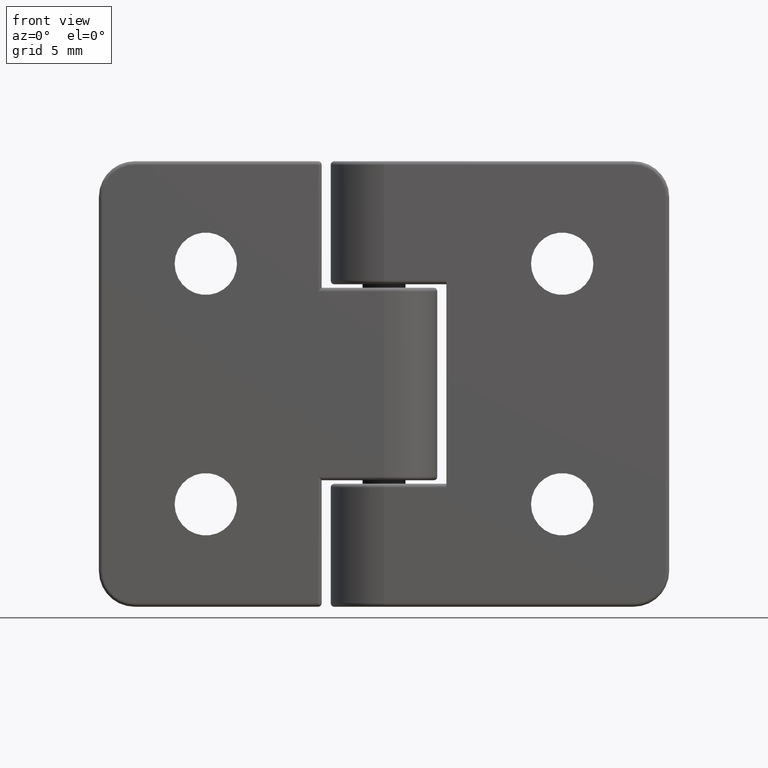
[diagram: clean part render]
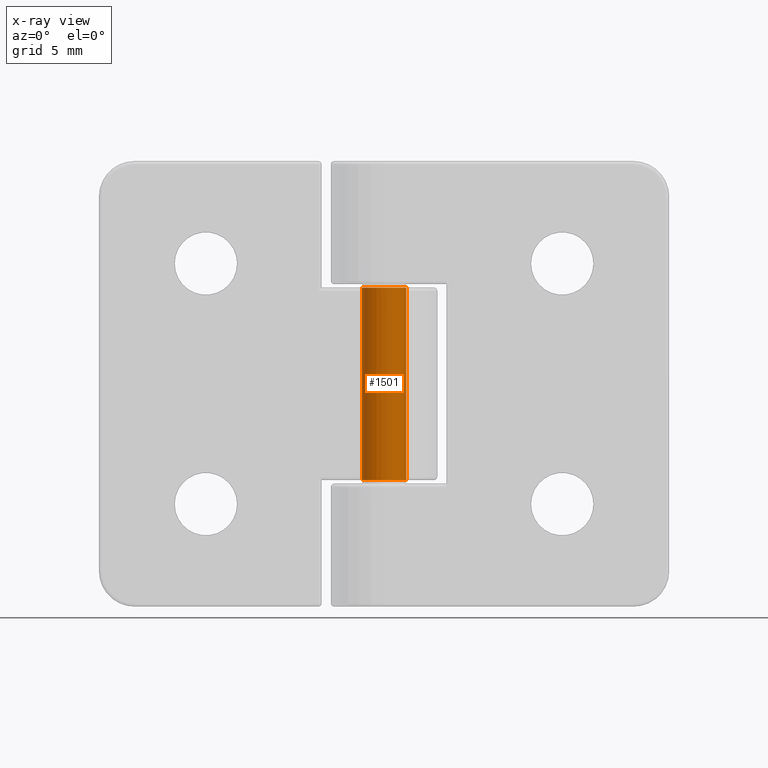
[diagram: x-ray — body ghosted, one internal face saturated and labeled with its STEP entity id]
A machine part, front view, then the same camera in x-ray: the body is ghosted and one INTERNAL B-rep face — a face not visible from any outside direction — is saturated and labeled: STEP entity #1501.
In plain terms, the highlighted cylindrical surface (bore or boss wall) has radius 1.25 mm, axis along (0, 0, -1).
Its self-contained STEP definition (entity closure, byte-faithful):
#88=FACE_BOUND('',#344,.T.);
#217=FACE_OUTER_BOUND('',#343,.T.);
#343=EDGE_LOOP('',(#1344));
#344=EDGE_LOOP('',(#1345));
#610=CIRCLE('',#1669,1.25);
#619=CIRCLE('',#1688,1.25);
#736=VERTEX_POINT('',#2599);
#747=VERTEX_POINT('',#2640);
#923=EDGE_CURVE('',#736,#736,#610,.T.);
#943=EDGE_CURVE('',#747,#747,#619,.T.);
#1344=ORIENTED_EDGE('',*,*,#943,.T.);
#1345=ORIENTED_EDGE('',*,*,#923,.T.);
#1408=CYLINDRICAL_SURFACE('',#1706,1.25);
#1501=ADVANCED_FACE('',(#217,#88),#1408,.F.);
#1669=AXIS2_PLACEMENT_3D('',#2600,#2113,#2114);
#1688=AXIS2_PLACEMENT_3D('',#2641,#2162,#2163);
#1706=AXIS2_PLACEMENT_3D('',#2685,#2200,#2201);
#2113=DIRECTION('center_axis',(3.41607084500048E-16,4.21400056207805E-32,
-1.));
#2114=DIRECTION('ref_axis',(-1.,1.43953244609305E-47,-3.41607084500048E-16));
#2162=DIRECTION('center_axis',(3.41607084500048E-16,4.21400056207805E-32,
1.));
#2163=DIRECTION('ref_axis',(-1.,1.43953244609305E-47,3.41607084500048E-16));
#2200=DIRECTION('center_axis',(0.,0.,1.));
#2201=DIRECTION('ref_axis',(-1.,0.,0.));
#2599=CARTESIAN_POINT('',(1.25,-1.53080849893419E-16,-5.4));
#2600=CARTESIAN_POINT('Origin',(0.,0.,-5.4));
#2640=CARTESIAN_POINT('',(1.25,1.53080849893419E-16,5.4));
#2641=CARTESIAN_POINT('Origin',(0.,0.,5.4));
#2685=CARTESIAN_POINT('Origin',(0.,0.,0.));